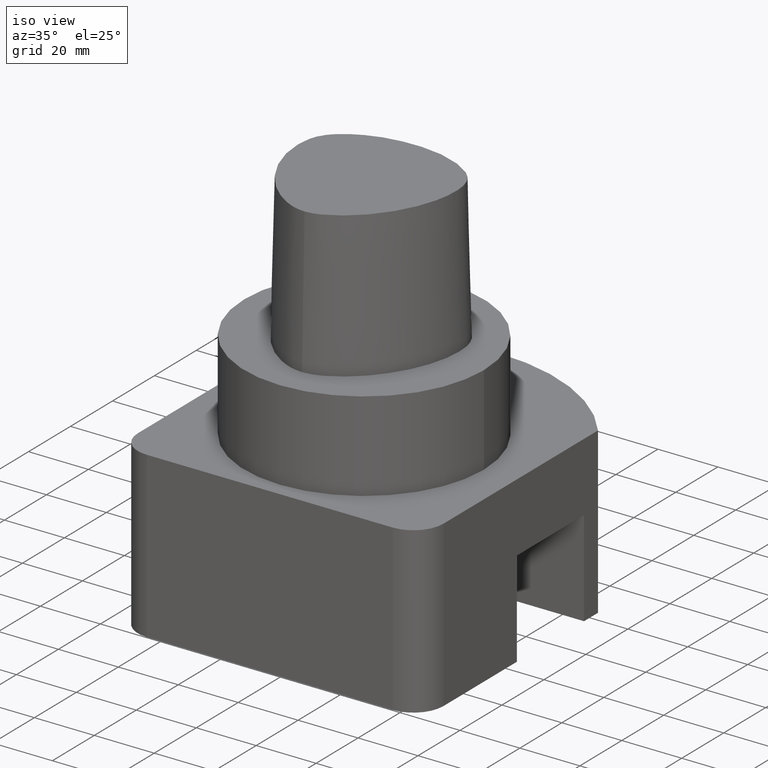
[diagram: clean part render]
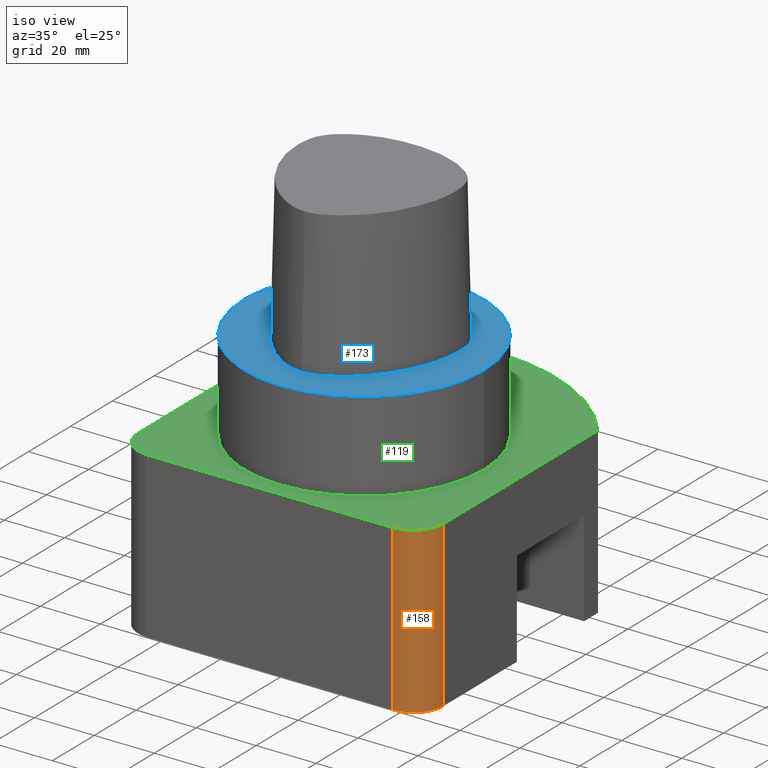
[diagram: same view with three faces highlighted in distinct colors, each labeled with its STEP entity id]
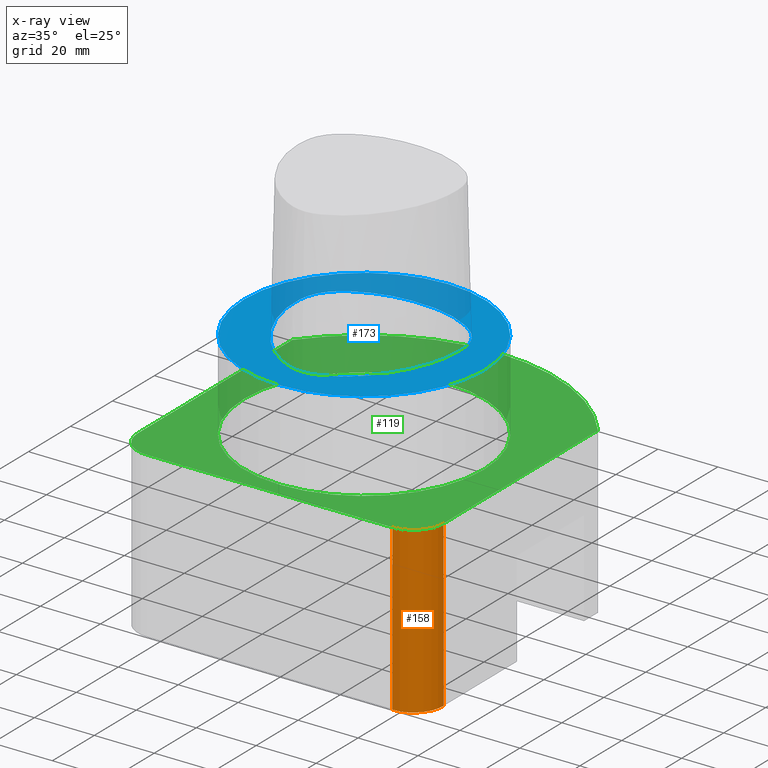
[diagram: x-ray of the same camera — body ghosted, the three highlighted faces saturated]
A machine part, iso view with three faces highlighted in distinct colors.
The next image is the same camera in x-ray (body ghosted, the three faces saturated) — at least one of them is partly hidden behind the body in this view.
Their STEP definitions:

[orange] entity #158 — the highlighted cylindrical surface (partial cylindrical patch) has radius 10 mm, axis along (-0, 0, 1).
#133=EDGE_CURVE('240[2]',#306,#307,#308,.T.);
#140=EDGE_CURVE('240[2]',#307,#317,#318,.T.);
#158=ADVANCED_FACE('240[2]',(#340),#341,.T.);
#160=EDGE_CURVE('240[2]',#327,#317,#343,.T.);
#181=EDGE_CURVE('240[2]',#306,#327,#368,.T.);
#306=VERTEX_POINT('',#568);
#307=VERTEX_POINT('',#569);
#308=LINE('',#570,#571);
#317=VERTEX_POINT('',#586);
#318=CIRCLE('',#587,9.99999999999999);
#327=VERTEX_POINT('',#602);
#340=FACE_OUTER_BOUND('',#622,.T.);
#341=CYLINDRICAL_SURFACE('',#623,10.0);
#343=LINE('',#626,#627);
#368=CIRCLE('',#1048,10.0);
#568=CARTESIAN_POINT('',(51.0,-35.0,-85.0));
#569=CARTESIAN_POINT('',(51.0,-35.0,-30.0));
#570=CARTESIAN_POINT('',(51.0,-35.0,-76.0));
#571=VECTOR('',#1288,0.71875);
#586=CARTESIAN_POINT('',(41.0,-45.0,-30.0));
#587=AXIS2_PLACEMENT_3D('',#1297,#1298,#1299);
#602=CARTESIAN_POINT('',(41.0,-45.0,-85.0));
#622=EDGE_LOOP('',(#1317,#1318,#1319,#1320));
#623=AXIS2_PLACEMENT_3D('',#1321,#1322,#1323);
#626=CARTESIAN_POINT('',(41.0,-45.0,-76.0));
#627=VECTOR('',#1324,0.71875);
#1048=AXIS2_PLACEMENT_3D('',#1351,#1352,#1353);
#1288=DIRECTION('',(-1.25052631576651E-026,2.82200504946853E-016,1.0));
#1297=CARTESIAN_POINT('',(41.0,-35.0,-30.0));
#1298=DIRECTION('',(-1.22464679914735E-016,1.22464679914735E-016,-1.0));
#1299=DIRECTION('',(1.0,2.1316282072803E-015,-1.22464679914735E-016));
#1317=ORIENTED_EDGE('',*,*,#133,.T.);
#1318=ORIENTED_EDGE('',*,*,#140,.T.);
#1319=ORIENTED_EDGE('',*,*,#160,.F.);
#1320=ORIENTED_EDGE('',*,*,#181,.F.);
#1321=CARTESIAN_POINT('',(41.0,-35.0,-53.0));
#1322=DIRECTION('',(-1.25052695885964E-026,4.70230146152941E-016,1.0));
#1323=DIRECTION('',(-6.21463022047966E-042,-1.0,4.70230146152941E-016));
#1324=DIRECTION('',(-1.25052631576651E-026,2.82200504946853E-016,1.0));
#1351=CARTESIAN_POINT('',(41.0,-35.0,-85.0));
#1352=DIRECTION('',(-1.22464679914735E-016,1.22464679914735E-016,-1.0));
#1353=DIRECTION('',(3.06161699786838E-016,1.0,1.22464679914735E-016));

[blue] entity #173 — the highlighted planar face has unit normal (-0, 0, 1).
#173=ADVANCED_FACE('240[2]',(#356,#357),#358,.T.);
#190=EDGE_CURVE('240[2]',#314,#314,#378,.T.);
#200=EDGE_CURVE('240[2]',#391,#391,#392,.T.);
#314=VERTEX_POINT('',#579);
#356=FACE_OUTER_BOUND('',#650,.T.);
#357=FACE_BOUND('',#651,.T.);
#358=PLANE('',#652);
#378=B_SPLINE_CURVE_WITH_KNOTS('',3,(#1063,#1064,#1065,#1066,#1067,#1068,#1069,#1070,#1071,#1072,#1073,#1074,#1075,#1076,#1077,#1078,#1079,#1080,#1081,#1082,#1083,#1084,#1085,#1086,#1087,#1088,#1089,#1090,#1091,#1092,#1093,#1094,#1095,#1096,#1097,#1098,#1099,#1100,#1101,#1102,#1103,#1104,#1105,#1106,#1107,#1108,#1109,#1110,#1111,#1112,#1113,#1114,#1115,#1116,#1117,#1118,#1119,#1120,#1121,#1122,#1123,#1124,#1125,#1126,#1127,#1128,#1129,#1130,#1131,#1132,#1133,#1134,#1135,#1136,#1137,#1138,#1139,#1140,#1141,#1142,#1143,#1144,#1145,#1146,#1147,#1148,#1149,#1150,#1151,#1152,#1153,#1154,#1155,#1156,#1157,#1158),.UNSPECIFIED.,.T.,.F.,(4,2,2,2,2,2,2,2,2,2,2,2,2,2,2,2,2,2,2,2,2,2,2,2,2,2,2,2,2,2,2,2,2,2,2,2,2,2,2,2,2,2,2,2,2,2,2,4),(0.0,0.023266238907101,0.04642321916497,0.069037428304488,0.090947532765319,0.112181511979892,0.132874081906891,0.153211623090307,0.173403899120381,0.193668982465133,0.214220857423359,0.235256169578881,0.256931182005521,0.279316100520023,0.302327812922285,0.325615908452607,0.348863915862354,0.37211588966546,0.394944167045003,0.417090524637617,0.438530318382332,0.459402579310312,0.479837360161492,0.499920279645309,0.520144802150986,0.540579089622822,0.561451608096301,0.58289068047617,0.605037731022285,0.627865851215146,0.651117829762372,0.674365843809947,0.697654002942623,0.720665464887439,0.743050887635834,0.764725116248188,0.7857605656535,0.806312370379442,0.826577482765943,0.846769695561797,0.867106984936976,0.887799904832214,0.90903349107026,0.930943318867528,0.953557807681498,0.97671479981417,0.999990517903696,1.0),.UNSPECIFIED.);
#391=VERTEX_POINT('',#1176);
#392=CIRCLE('',#1177,39.9925);
#579=CARTESIAN_POINT('',(-0.00164083163227307,-29.5748662817043,0.0));
#650=EDGE_LOOP('',(#1333));
#651=EDGE_LOOP('',(#1334));
#652=AXIS2_PLACEMENT_3D('',#1335,#1336,#1337);
#1063=CARTESIAN_POINT('',(-0.00164083163227307,-29.5748662817043,0.0));
#1064=CARTESIAN_POINT('',(-1.34367882227266,-29.5936106625075,0.0));
#1065=CARTESIAN_POINT('',(-2.68740420004953,-29.3328889282446,0.0));
#1066=CARTESIAN_POINT('',(-5.26074084631931,-28.5400905705423,0.0));
#1067=CARTESIAN_POINT('',(-6.49085836398545,-28.0092939838118,0.0));
#1068=CARTESIAN_POINT('',(-8.82856305941638,-26.7799538548108,0.0));
#1069=CARTESIAN_POINT('',(-9.93834640062538,-26.0856337015913,0.0));
#1070=CARTESIAN_POINT('',(-12.0309823905868,-24.5926315357893,0.0));
#1071=CARTESIAN_POINT('',(-13.0167112443809,-23.7978719690822,0.0));
#1072=CARTESIAN_POINT('',(-14.8727265816832,-22.1381942733804,0.0));
#1073=CARTESIAN_POINT('',(-15.7456368168333,-21.2761980066665,0.0));
#1074=CARTESIAN_POINT('',(-17.3879214183881,-19.499427365145,0.0));
#1075=CARTESIAN_POINT('',(-18.1593681806271,-18.5865590846551,0.0));
#1076=CARTESIAN_POINT('',(-19.6094862833069,-16.7150017171437,0.0));
#1077=CARTESIAN_POINT('',(-20.289522306802,-15.7573675155919,0.0));
#1078=CARTESIAN_POINT('',(-21.5656702578572,-13.797506639011,0.0));
#1079=CARTESIAN_POINT('',(-22.1623469365906,-12.7956473319474,0.0));
#1080=CARTESIAN_POINT('',(-23.2752180864568,-10.74347032584,0.0));
#1081=CARTESIAN_POINT('',(-23.7911146053519,-9.69299092556669,0.0));
#1082=CARTESIAN_POINT('',(-24.7420870094788,-7.53819816873291,0.0));
#1083=CARTESIAN_POINT('',(-25.1759157970854,-6.43333334291295,0.0));
#1084=CARTESIAN_POINT('',(-25.9554404448504,-4.16361692512217,0.0));
#1085=CARTESIAN_POINT('',(-26.2988231270793,-2.99796562277025,0.0));
#1086=CARTESIAN_POINT('',(-26.8823734669132,-0.603263018451645,0.0));
#1087=CARTESIAN_POINT('',(-27.1190847093475,0.626638314508976,0.0));
#1088=CARTESIAN_POINT('',(-27.4609002561416,3.1469664581956,0.0));
#1089=CARTESIAN_POINT('',(-27.5614402101816,4.43805628657725,0.0));
#1090=CARTESIAN_POINT('',(-27.5863066124947,7.05787796805234,0.0));
#1091=CARTESIAN_POINT('',(-27.5056201279308,8.38665155837626,0.0));
#1092=CARTESIAN_POINT('',(-27.0954571151674,11.0352567744664,0.0));
#1093=CARTESIAN_POINT('',(-26.7630041230867,12.3547893226748,0.0));
#1094=CARTESIAN_POINT('',(-25.6724521861925,14.8124702450063,0.0));
#1095=CARTESIAN_POINT('',(-24.9150869333233,15.9509269437304,0.0));
#1096=CARTESIAN_POINT('',(-23.1210312548435,17.9569470053759,0.0));
#1097=CARTESIAN_POINT('',(-22.0842931950003,18.8244641174544,0.0));
#1098=CARTESIAN_POINT('',(-19.908909483221,20.3616348354058,0.0));
#1099=CARTESIAN_POINT('',(-18.7724650249979,21.0346058511353,0.0));
#1100=CARTESIAN_POINT('',(-16.4567596515209,22.2069945116741,0.0));
#1101=CARTESIAN_POINT('',(-15.2797918086139,22.7109959882008,0.0));
#1102=CARTESIAN_POINT('',(-12.9207332535993,23.5857253409895,0.0));
#1103=CARTESIAN_POINT('',(-11.740003999522,23.9601922020954,0.0));
#1104=CARTESIAN_POINT('',(-9.37648722149752,24.5736332451035,0.0));
#1105=CARTESIAN_POINT('',(-8.19458153545295,24.8159316598014,0.0));
#1106=CARTESIAN_POINT('',(-5.83850844197054,25.1759510165757,0.0));
#1107=CARTESIAN_POINT('',(-4.66469807187812,25.2961766417791,0.0));
#1108=CARTESIAN_POINT('',(-2.3312699890678,25.4544662638825,0.0));
#1109=CARTESIAN_POINT('',(-1.17175591409117,25.4939093361241,0.0));
#1110=CARTESIAN_POINT('',(1.15545266416126,25.494540252471,0.0));
#1111=CARTESIAN_POINT('',(2.32314720120702,25.4551743644366,0.0));
#1112=CARTESIAN_POINT('',(4.66463729586072,25.2960231489021,0.0));
#1113=CARTESIAN_POINT('',(5.83837051795068,25.1754079607774,0.0));
#1114=CARTESIAN_POINT('',(8.19448404193754,24.8154739309331,0.0));
#1115=CARTESIAN_POINT('',(9.37650995847748,24.573664860466,0.0));
#1116=CARTESIAN_POINT('',(11.7399573199399,23.9602471092435,0.0));
#1117=CARTESIAN_POINT('',(12.9204914744584,23.585293366417,0.0));
#1118=CARTESIAN_POINT('',(15.2795848008339,22.7105342386106,0.0));
#1119=CARTESIAN_POINT('',(16.4567913745813,22.2070147920283,0.0));
#1120=CARTESIAN_POINT('',(18.7726283764867,21.034903794727,0.0));
#1121=CARTESIAN_POINT('',(19.9089592260428,20.3617120962174,0.0));
#1122=CARTESIAN_POINT('',(22.0842485191724,18.8243782496281,0.0));
#1123=CARTESIAN_POINT('',(23.12100726512,17.9569227334155,0.0));
#1124=CARTESIAN_POINT('',(24.9151158158093,15.9509545348034,0.0));
#1125=CARTESIAN_POINT('',(25.6725132300842,14.8124880933032,0.0));
#1126=CARTESIAN_POINT('',(26.762962807837,12.3547780213407,0.0));
#1127=CARTESIAN_POINT('',(27.0952799458876,11.0352256163986,0.0));
#1128=CARTESIAN_POINT('',(27.5055512569286,8.3866145607775,0.0));
#1129=CARTESIAN_POINT('',(27.5864807188881,7.05785513793988,0.0));
#1130=CARTESIAN_POINT('',(27.561392778196,4.43806075995118,0.0));
#1131=CARTESIAN_POINT('',(27.4604014662893,3.14698296007575,0.0));
#1132=CARTESIAN_POINT('',(27.118611303309,0.626629008731148,0.0));
#1133=CARTESIAN_POINT('',(26.8823561320654,-0.603307445442234,0.0));
#1134=CARTESIAN_POINT('',(26.2990081949749,-2.99798519998628,0.0));
#1135=CARTESIAN_POINT('',(25.9553872246104,-4.16357961185391,0.0));
#1136=CARTESIAN_POINT('',(25.1758761789259,-6.43333881304994,0.0));
#1137=CARTESIAN_POINT('',(24.7422891917365,-7.53829982079648,0.0));
#1138=CARTESIAN_POINT('',(23.7911396305002,-9.69297644170627,0.0));
#1139=CARTESIAN_POINT('',(23.2748328680553,-10.7432476936092,0.0));
#1140=CARTESIAN_POINT('',(22.1620073500161,-12.7954883285933,0.0));
#1141=CARTESIAN_POINT('',(21.5657838219206,-13.797617876684,0.0));
#1142=CARTESIAN_POINT('',(20.289692338909,-15.7574429608729,0.0));
#1143=CARTESIAN_POINT('',(19.6092541949823,-16.7147675174567,0.0));
#1144=CARTESIAN_POINT('',(18.1590928335012,-18.5863673368761,0.0));
#1145=CARTESIAN_POINT('',(17.3880163872248,-19.4995970803095,0.0));
#1146=CARTESIAN_POINT('',(15.7458756068693,-21.2763690689372,0.0));
#1147=CARTESIAN_POINT('',(14.8727251768577,-22.1379896342994,0.0));
#1148=CARTESIAN_POINT('',(13.0164986146837,-23.7977451564491,0.0));
#1149=CARTESIAN_POINT('',(12.0308072155323,-24.5929843178023,0.0));
#1150=CARTESIAN_POINT('',(9.93827470804141,-26.0847683712151,0.0));
#1151=CARTESIAN_POINT('',(8.82855678381542,-26.7773164869684,0.0));
#1152=CARTESIAN_POINT('',(6.49089493491194,-28.0120447965454,0.0));
#1153=CARTESIAN_POINT('',(5.26075348594719,-28.5502192368694,0.0));
#1154=CARTESIAN_POINT('',(2.68687274960978,-29.3229139791992,0.0));
#1155=CARTESIAN_POINT('',(1.34258338152267,-29.5558632991381,0.0));
#1156=CARTESIAN_POINT('',(-0.000546943594635069,-29.5748509568372,0.0));
#1157=CARTESIAN_POINT('',(-0.00109388747331907,-29.5748586424797,0.0));
#1158=CARTESIAN_POINT('',(-0.00164083163225307,-29.5748662817043,0.0));
#1176=CARTESIAN_POINT('',(39.9925,-1.44519304248361E-014,0.0));
#1177=AXIS2_PLACEMENT_3D('',#1381,#1382,#1383);
#1333=ORIENTED_EDGE('',*,*,#200,.F.);
#1334=ORIENTED_EDGE('',*,*,#190,.T.);
#1335=CARTESIAN_POINT('',(-39.9925001,39.9925001,-7.105427357601E-015));
#1336=DIRECTION('',(-7.49879891330927E-033,6.12323399573677E-017,1.0));
#1337=DIRECTION('',(1.0,1.22464679914735E-016,0.0));
#1381=CARTESIAN_POINT('',(0.0,0.0,0.0));
#1382=DIRECTION('',(1.23505709193311E-016,-6.12323399573677E-017,-1.0));
#1383=DIRECTION('',(-1.0,4.16407813559172E-016,-1.23505709193311E-016));

[green] entity #119 — the highlighted planar face has unit normal (0, -0, -1).
#80=EDGE_CURVE('240[2]',#226,#227,#228,.T.);
#119=ADVANCED_FACE('240[2]',(#283,#284),#285,.F.);
#125=EDGE_CURVE('240[2]',#293,#293,#294,.T.);
#129=EDGE_CURVE('240[2]',#299,#300,#301,.T.);
#140=EDGE_CURVE('240[2]',#307,#317,#318,.T.);
#144=EDGE_CURVE('240[2]',#227,#307,#323,.T.);
#168=EDGE_CURVE('240[2]',#268,#226,#351,.T.);
#170=EDGE_CURVE('240[2]',#317,#299,#353,.T.);
#206=EDGE_CURVE('240[2]',#300,#268,#398,.T.);
#226=VERTEX_POINT('',#409);
#227=VERTEX_POINT('',#410);
#228=LINE('',#411,#412);
#268=VERTEX_POINT('',#466);
#283=FACE_OUTER_BOUND('',#487,.T.);
#284=FACE_BOUND('',#488,.T.);
#285=PLANE('',#489);
#293=VERTEX_POINT('',#549);
#294=CIRCLE('',#550,39.9925);
#299=VERTEX_POINT('',#558);
#300=VERTEX_POINT('',#559);
#301=CIRCLE('',#560,10.0);
#307=VERTEX_POINT('',#569);
#317=VERTEX_POINT('',#586);
#318=CIRCLE('',#587,9.99999999999999);
#323=LINE('',#595,#596);
#351=CIRCLE('',#642,64.0);
#353=LINE('',#645,#646);
#398=LINE('',#1188,#1189);
#409=CARTESIAN_POINT('',(50.9999999267513,38.6652299549785,-30.0));
#410=CARTESIAN_POINT('',(51.0,-0.10000000000004,-30.0));
#411=CARTESIAN_POINT('',(51.0,-0.100000000000038,-30.0));
#412=VECTOR('',#1195,1.0);
#466=CARTESIAN_POINT('',(-50.9999999078492,38.6652299799106,-30.0));
#487=EDGE_LOOP('',(#1268,#1269,#1270,#1271,#1272,#1273,#1274));
#488=EDGE_LOOP('',(#1275));
#489=AXIS2_PLACEMENT_3D('',#1276,#1277,#1278);
#549=CARTESIAN_POINT('',(39.9925,-1.5666566925062E-014,-30.0));
#550=AXIS2_PLACEMENT_3D('',#1280,#1281,#1282);
#558=CARTESIAN_POINT('',(-41.0,-45.0,-30.0));
#559=CARTESIAN_POINT('',(-51.0,-34.99999999,-30.0));
#560=AXIS2_PLACEMENT_3D('',#1284,#1285,#1286);
#569=CARTESIAN_POINT('',(51.0,-35.0,-30.0));
#586=CARTESIAN_POINT('',(41.0,-45.0,-30.0));
#587=AXIS2_PLACEMENT_3D('',#1297,#1298,#1299);
#595=CARTESIAN_POINT('',(51.0,-0.10000000000004,-30.0));
#596=VECTOR('',#1301,1.0);
#642=AXIS2_PLACEMENT_3D('',#1328,#1329,#1330);
#645=CARTESIAN_POINT('',(41.0,-45.0,-30.0));
#646=VECTOR('',#1331,1.0);
#1188=CARTESIAN_POINT('',(-51.0,-34.99999999,-30.0));
#1189=VECTOR('',#1386,1.0);
#1195=DIRECTION('',(1.88954708062822E-009,-1.0,6.12323401887705E-017));
#1268=ORIENTED_EDGE('',*,*,#206,.F.);
#1269=ORIENTED_EDGE('',*,*,#129,.F.);
#1270=ORIENTED_EDGE('',*,*,#170,.F.);
#1271=ORIENTED_EDGE('',*,*,#140,.F.);
#1272=ORIENTED_EDGE('',*,*,#144,.F.);
#1273=ORIENTED_EDGE('',*,*,#80,.F.);
#1274=ORIENTED_EDGE('',*,*,#168,.F.);
#1275=ORIENTED_EDGE('',*,*,#125,.T.);
#1276=CARTESIAN_POINT('',(51.0000001,-45.0000001,-30.0));
#1277=DIRECTION('',(1.22464679914735E-016,-6.12323399573677E-017,-1.0));
#1278=DIRECTION('',(0.0,-1.0,6.12323399573677E-017));
#1280=CARTESIAN_POINT('',(1.04682009057955E-014,-1.54254912154279E-014,-30.0));
#1281=DIRECTION('',(1.23505709193311E-016,-6.12323399573677E-017,-1.0));
#1282=DIRECTION('',(1.0,-6.02802299516348E-018,1.23505709193311E-016));
#1284=CARTESIAN_POINT('',(-41.0,-35.0,-30.0));
#1285=DIRECTION('',(-1.22464679914736E-016,1.22464679914735E-016,-1.0));
#1286=DIRECTION('',(-7.105427357601E-016,-1.0,-1.22464679914735E-016));
#1297=CARTESIAN_POINT('',(41.0,-35.0,-30.0));
#1298=DIRECTION('',(-1.22464679914735E-016,1.22464679914735E-016,-1.0));
#1299=DIRECTION('',(1.0,2.1316282072803E-015,-1.22464679914735E-016));
#1301=DIRECTION('',(-2.03593907094585E-016,-1.0,6.12323399573676E-017));
#1328=CARTESIAN_POINT('',(-5.51901064880676E-015,-8.32006385782689E-015,-30.0));
#1329=DIRECTION('',(-1.22464679914736E-016,1.22464679914735E-016,-1.0));
#1330=DIRECTION('',(-0.779661015369326,0.626201805421601,1.72168540352188E-016));
#1331=DIRECTION('',(-1.0,1.73303106282951E-016,-1.22464679914735E-016));
#1386=DIRECTION('',(1.2509401301009E-009,1.0,-6.12323398041717E-017));